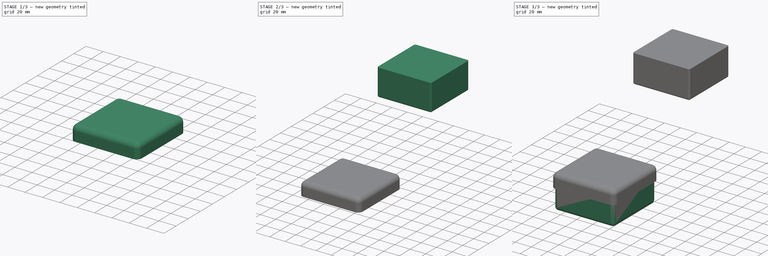
[diagram: build sequence overview — one tinted view per stage of 3, left to right]
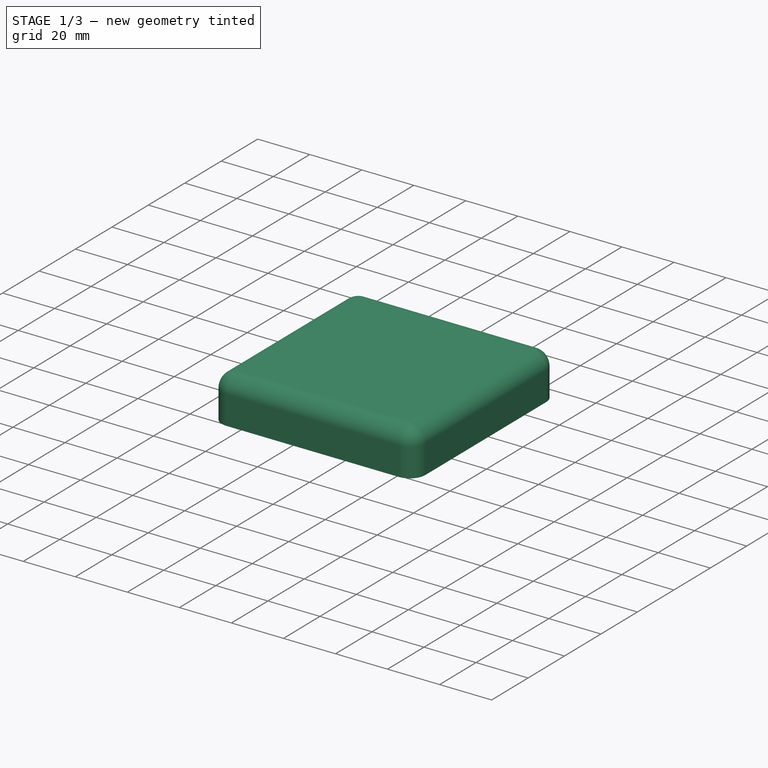
[diagram: stage 1 of 3 — iso view after this stage's code; geometry added in this stage tinted green]
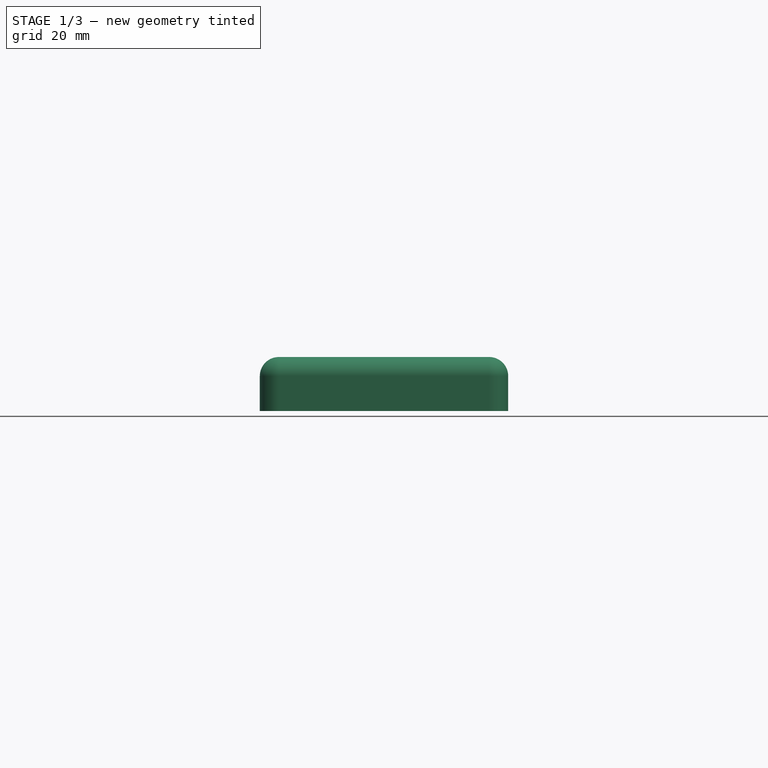
[diagram: stage 1 of 3 — front view after this stage's code; geometry added in this stage tinted green]
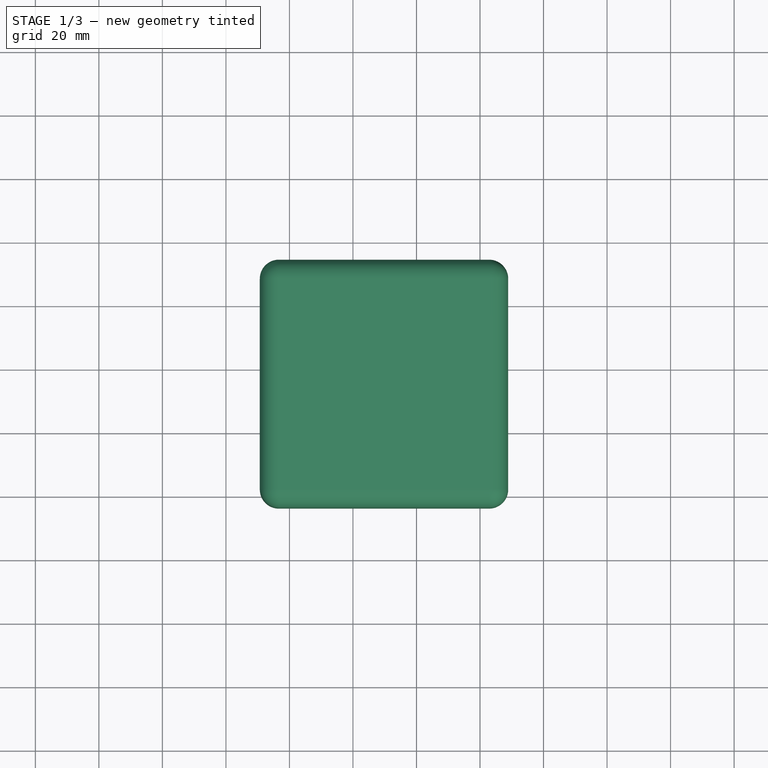
[diagram: stage 1 of 3 — top view after this stage's code; geometry added in this stage tinted green]
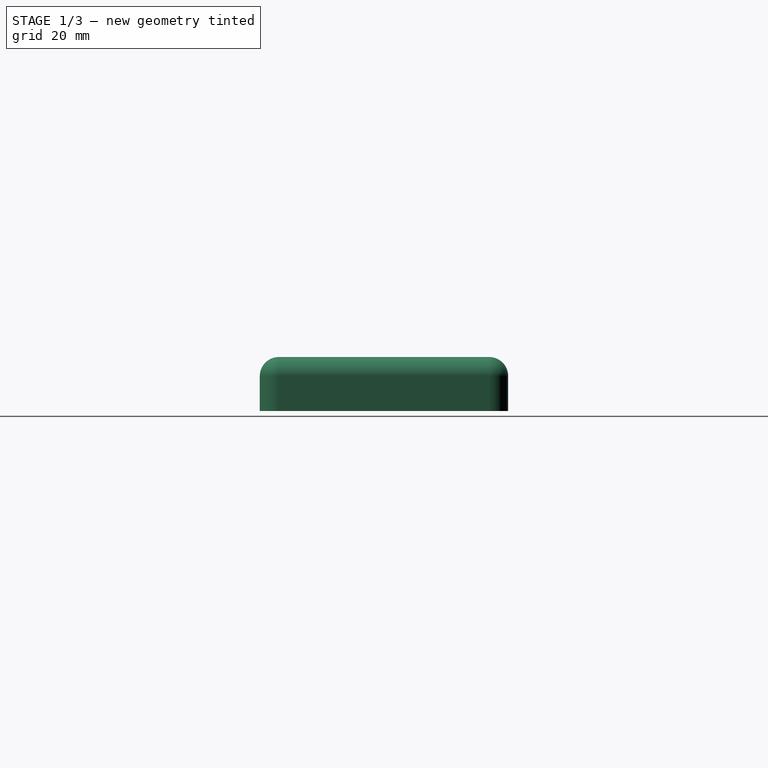
[diagram: stage 1 of 3 — right view after this stage's code; geometry added in this stage tinted green]
FCSTD DOCUMENT  (FreeCAD 0.16R6700 (Git))
Label: caja_parametrica_V1
License: All rights reserved
LicenseURL: http://es.wikipedia.org/wiki/Todos_los_derechos_reservados
objects: Sketcher::SketchObject×3, PartDesign::Pad×3, PartDesign::Fillet×3, App::FeaturePython×3, Part::Thickness×2, Spreadsheet::Sheet×1, Drawing::FeatureViewPython×1, Drawing::FeaturePage×1
note: 14 computed .brp shape members not serialized (recipe doc carries the construction recipe); baked Part::Feature solids carry a one-line shape summary decoded from their .brp

FEATURE [Drawing::FeatureViewPython] ViewSpreadsheet  # drawing view (typed FeaturePython)
  Direction = (0,0,0)
  FillStyle = 0
  FontSize = 12
  LineStyle = 0
  LineWidth = 0.35
  Rotation = 0
  Scale = 20
  Source = -> Spreadsheet
  ViewResult = <g id="ViewSpreadsheet" transform="rotate(0.0,200.0,100.0) translate(200.0,100.0) scale(20.0,-20.0)"></g>
  Visible = true
  X = 200
  Y = 100
FEATURE [Drawing::FeaturePage] Page
  EditableTexts = AUTHOR NAME | CREATION DATE | SUPERVISOR NAME | CHECK DATE | SCALE | WEIGHT | NUMBER | SHEET | TITLE | SUBTITLE
  Group = -> [ViewSpreadsheet]
FEATURE [Sketcher::SketchObject] Sketch002
  expr: Constraints[9] = Spreadsheet.ancho + 4.2
  expr: Constraints[8] = Spreadsheet.fondo + 4.2
  sketch-geometry (4):
    g0: LineSegment StartX=12.6736 StartY=0 StartZ=0 EndX=86.8736 EndY=0 EndZ=0
    g1: LineSegment StartX=86.8736 StartY=0 StartZ=0 EndX=86.8736 EndY=-74.2 EndZ=0
    g2: LineSegment StartX=86.8736 StartY=-74.2 StartZ=0 EndX=12.6736 EndY=-74.2 EndZ=0
    g3: LineSegment StartX=12.6736 StartY=-74.2 StartZ=0 EndX=12.6736 EndY=0 EndZ=0
  constraints (11):
    c: Coincident(g0,g1)
    c: Coincident(g1,g2)
    c: Coincident(g2,g3)
    c: Coincident(g3,g0)
    c: Horizontal(g0)
    c: Horizontal(g2)
    c: Vertical(g1)
    c: Vertical(g3)
    c: DistanceY(g1,g1) = 74.2
    c: DistanceX(g2,g2) = 74.2
    c: PointOnObject(g0,g-1)
FEATURE [PartDesign::Pad] Pad002
  Length = 15
  Length2 = 100
  Sketch = -> Sketch002
  Type = 0
  expr: Length = Spreadsheet.alto_tapa
FEATURE [PartDesign::Fillet] Fillet002
  Base = -> Pad002 [Edge8,Edge5,Edge2,Edge9,Edge6,Edge11,Edge1,Edge3]
  Radius = 4
  expr: Radius = Spreadsheet.radio + 2
FEATURE [Part::Thickness] Thickness001  label="Tapa"
  Faces = -> Fillet002 [Face2]
  Intersection = false
  Join = 0
  Mode = 0
  Placement = pos=(39.5456,-67.4232,-85.447) rot=(0,1,0;3.14159rad)
  SelfIntersection = false
  Value = 2
FEATURE [App::FeaturePython] planeConstraint01  # a2plus constraint (typed FeaturePython)
  Object1 = Thickness001
  Object2 = Thickness
  SubElement1 = Face12
  SubElement2 = Face18
  Type = plane
  directionConstraint = 1
  offset = -3.5
FEATURE [App::FeaturePython] planeConstraint02  # a2plus constraint (typed FeaturePython)
  Object1 = Thickness001
  Object2 = Thickness
  SubElement1 = Face5
  SubElement2 = Face23
  Type = plane
  directionConstraint = 0
  offset = 0.1
FEATURE [App::FeaturePython] planeConstraint03  # a2plus constraint (typed FeaturePython)
  Object1 = Thickness
  Object2 = Thickness001
  SubElement1 = Face26
  SubElement2 = Face9
  Type = plane
  directionConstraint = 0
  offset = -0.1
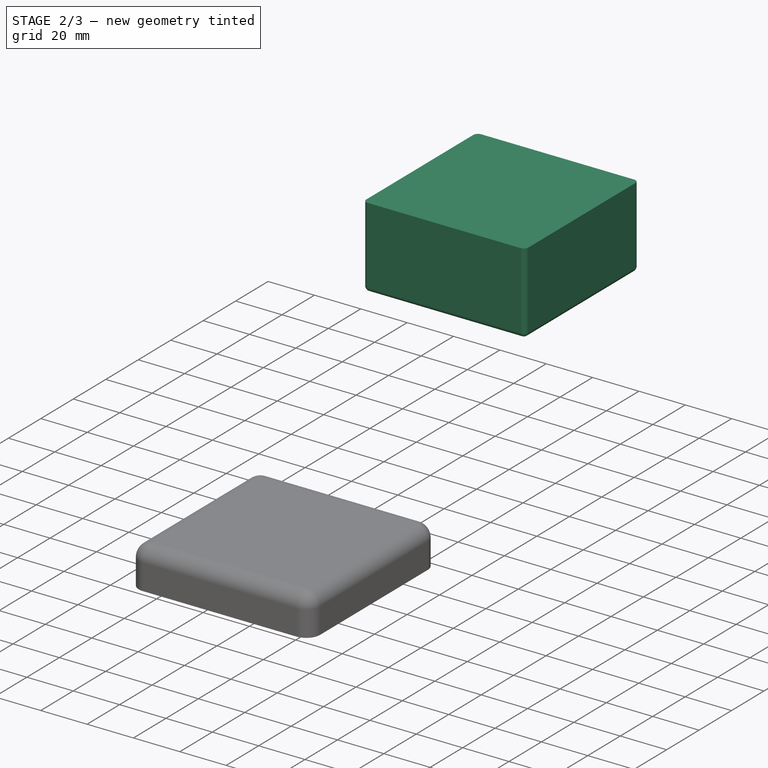
[diagram: stage 2 of 3 — iso view after this stage's code; geometry added in this stage tinted green]
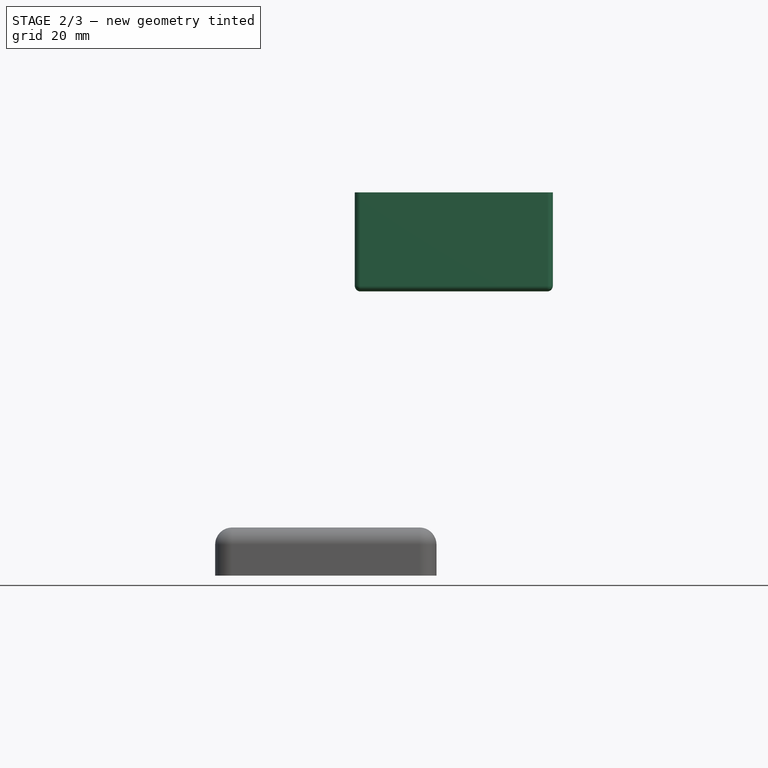
[diagram: stage 2 of 3 — front view after this stage's code; geometry added in this stage tinted green]
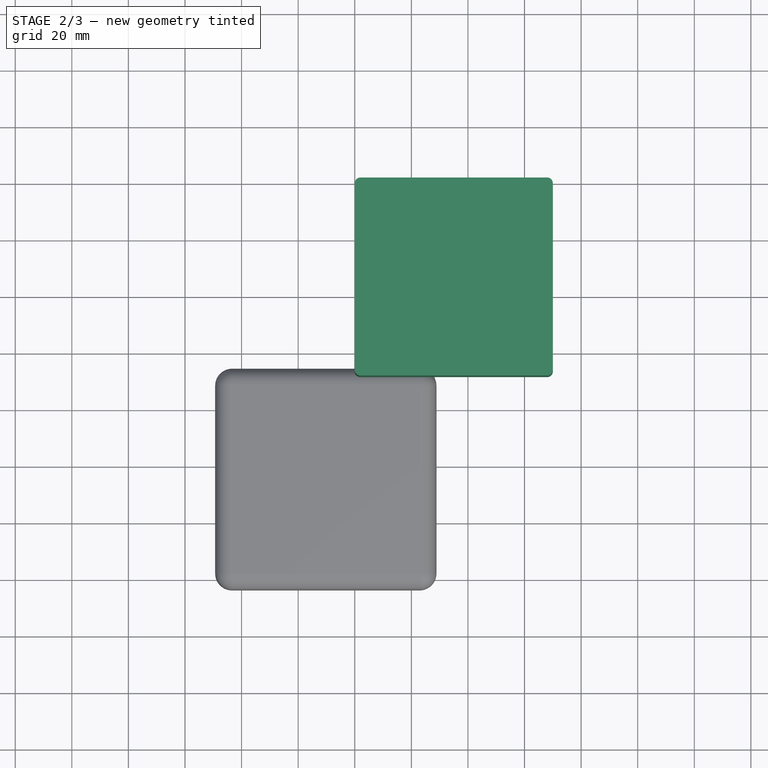
[diagram: stage 2 of 3 — top view after this stage's code; geometry added in this stage tinted green]
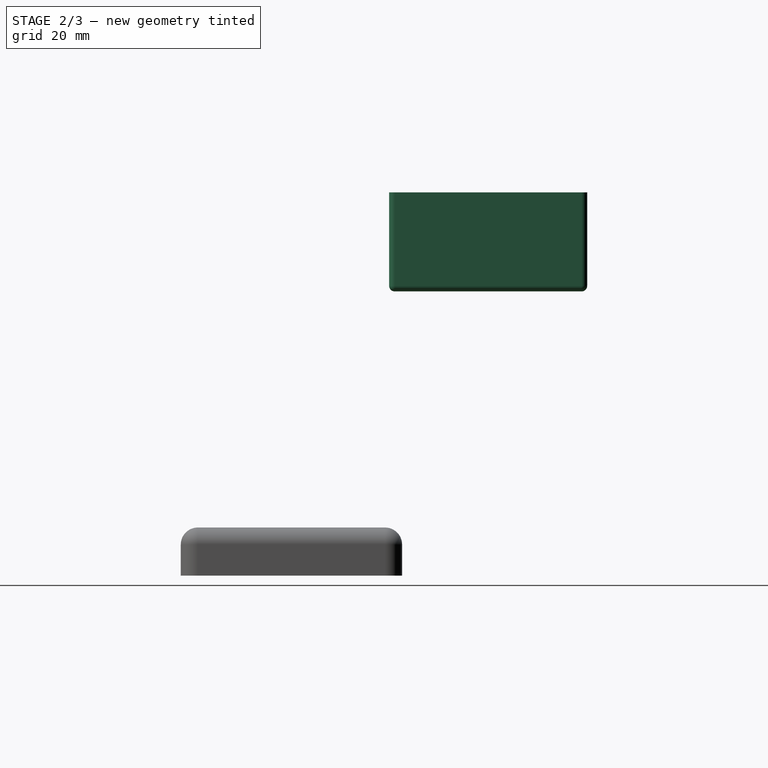
[diagram: stage 2 of 3 — right view after this stage's code; geometry added in this stage tinted green]
FEATURE [Sketcher::SketchObject] Sketch001
  expr: Constraints[10] = Spreadsheet.fondo
  expr: Constraints[9] = Spreadsheet.ancho
  sketch-geometry (4):
    g0: LineSegment StartX=0 StartY=0 StartZ=0 EndX=70 EndY=0 EndZ=0
    g1: LineSegment StartX=70 StartY=0 StartZ=0 EndX=70 EndY=-70 EndZ=0
    g2: LineSegment StartX=70 StartY=-70 StartZ=0 EndX=0 EndY=-70 EndZ=0
    g3: LineSegment StartX=0 StartY=-70 StartZ=0 EndX=0 EndY=0 EndZ=0
  constraints (11):
    c: Coincident(g0,g1)
    c: Coincident(g1,g2)
    c: Coincident(g2,g3)
    c: Coincident(g3,g0)
    c: Horizontal(g0)
    c: Horizontal(g2)
    c: Vertical(g1)
    c: Vertical(g3)
    c: Coincident(g0,g-1)
    c: DistanceX(g0,g0) = 70
    c: DistanceY(g3,g3) = 70
FEATURE [PartDesign::Pad] Pad001
  Length = 35
  Length2 = 100
  Sketch = -> Sketch001
  Type = 0
  expr: Length = Spreadsheet.alto
FEATURE [PartDesign::Fillet] Fillet001
  Base = -> Pad001 [Edge2,Edge3,Edge1,Edge11,Edge8,Edge9,Edge5,Edge6]
  Radius = 2
  expr: Radius = Spreadsheet.radio
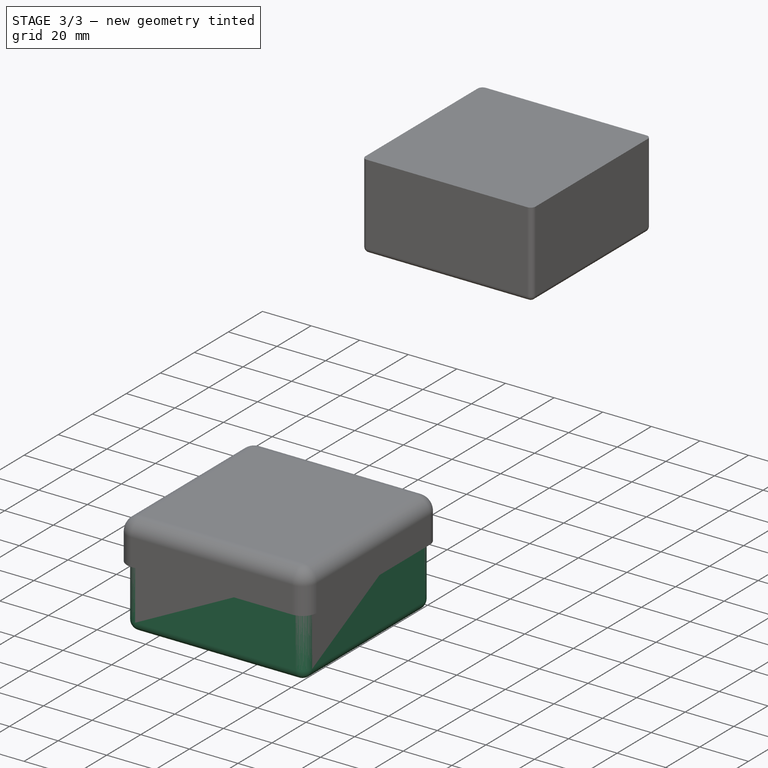
[diagram: stage 3 of 3 — iso view after this stage's code; geometry added in this stage tinted green]
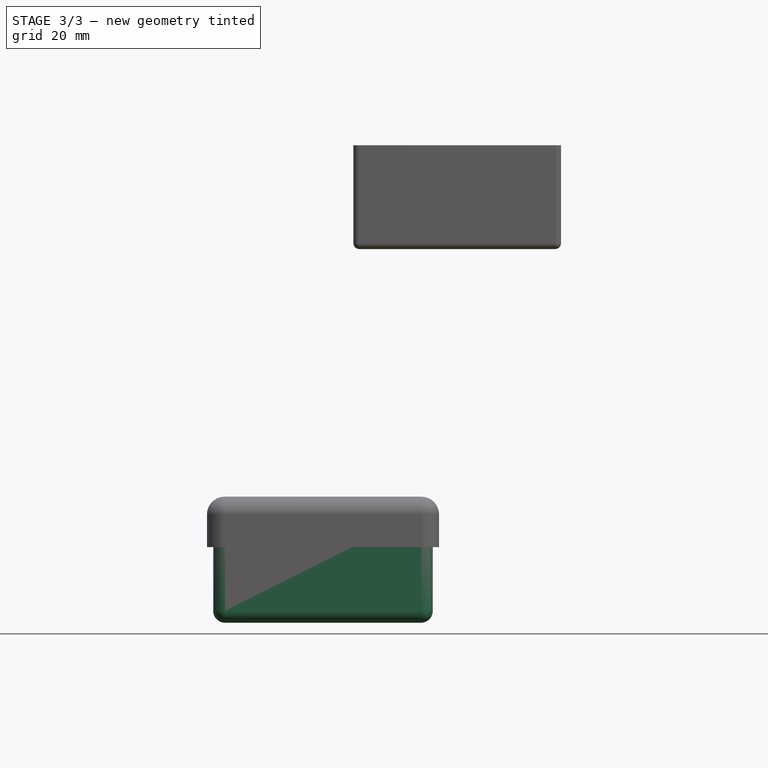
[diagram: stage 3 of 3 — front view after this stage's code; geometry added in this stage tinted green]
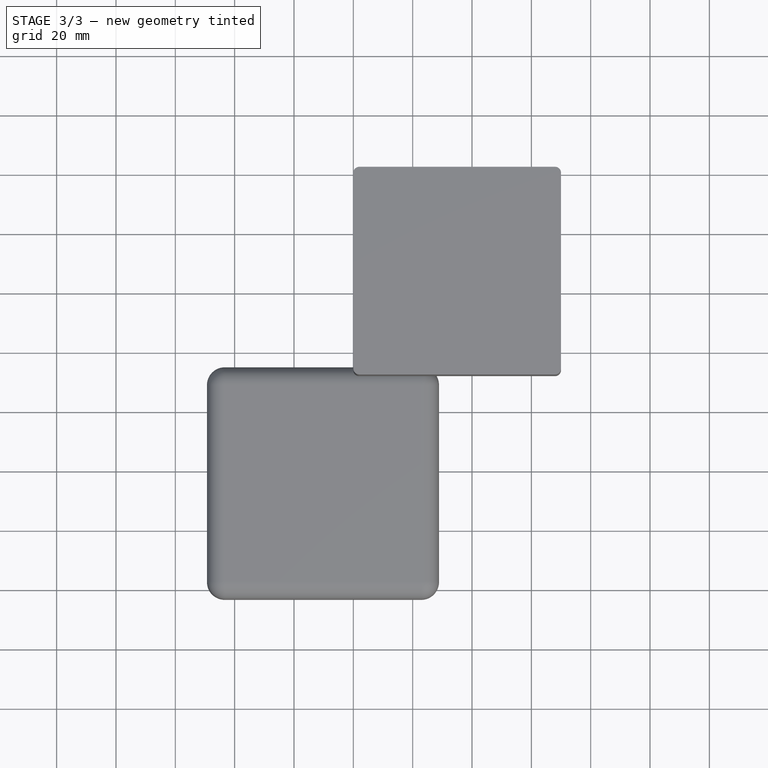
[diagram: stage 3 of 3 — top view after this stage's code; geometry added in this stage tinted green]
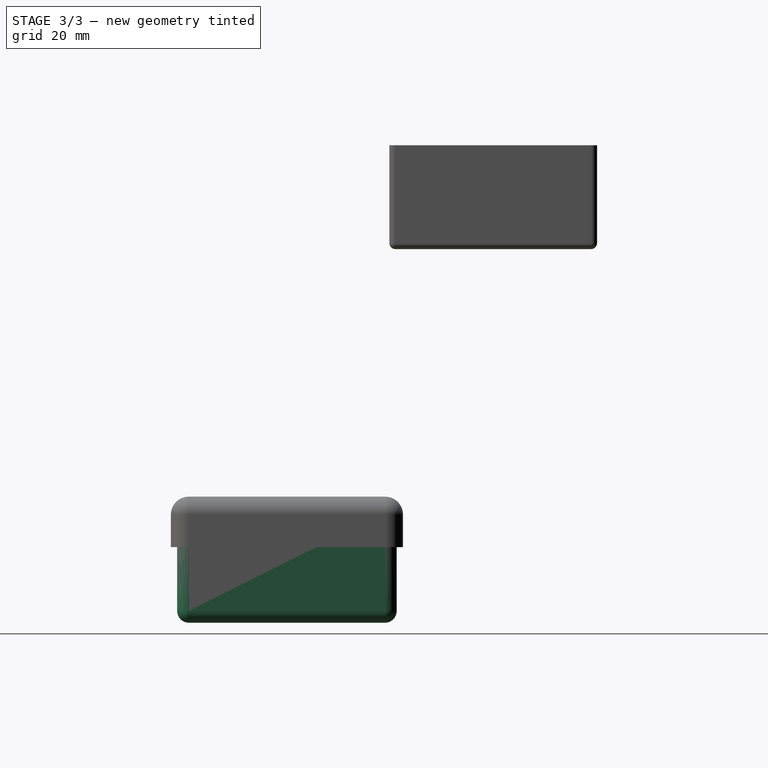
[diagram: stage 3 of 3 — right view after this stage's code; geometry added in this stage tinted green]
FEATURE [Spreadsheet::Sheet] Spreadsheet  label="Tabla_Caja"
  cells = B4=PARÁMETROS CAJA; B5=Ancho Caja; C5(ancho)=70; B6=Fondo Caja; C6(fondo)=70; B7=Altura Caja; C7(alto)=35; B8=Radio Curva; C8(radio)=2; B10=PARÁMETROS TAPA; B11=Altura Tapa; C11(alto_tapa)=15
FEATURE [Sketcher::SketchObject] Sketch
  expr: Constraints[10] = Tabla_Caja.fondo
  expr: Constraints[9] = Tabla_Caja.ancho
  sketch-geometry (4):
    g0: LineSegment StartX=0 StartY=0 StartZ=0 EndX=70 EndY=0 EndZ=0
    g1: LineSegment StartX=70 StartY=0 StartZ=0 EndX=70 EndY=-70 EndZ=0
    g2: LineSegment StartX=70 StartY=-70 StartZ=0 EndX=0 EndY=-70 EndZ=0
    g3: LineSegment StartX=0 StartY=-70 StartZ=0 EndX=0 EndY=0 EndZ=0
  constraints (11):
    c: Coincident(g0,g1)
    c: Coincident(g1,g2)
    c: Coincident(g2,g3)
    c: Coincident(g3,g0)
    c: Horizontal(g0)
    c: Horizontal(g2)
    c: Vertical(g1)
    c: Vertical(g3)
    c: Coincident(g0,g-1)
    c: DistanceX(g0,g0) = 70
    c: DistanceY(g3,g3) = 70
FEATURE [PartDesign::Pad] Pad
  Length = 35
  Length2 = 100
  Sketch = -> Sketch
  Type = 0
  expr: Length = Tabla_Caja.alto
FEATURE [PartDesign::Fillet] Fillet
  Base = -> Pad [Edge2,Edge3,Edge1,Edge11,Edge8,Edge9,Edge5,Edge6]
  Radius = 2
  expr: Radius = Tabla_Caja.radio
FEATURE [Part::Thickness] Thickness  label="Caja"
  Faces = -> Fillet [Face2]
  Intersection = false
  Join = 0
  Mode = 0
  Placement = pos=(-45.2281,-69.5232,-123.947) rot=(0,0,1;0rad)
  SelfIntersection = false
  Value = 2
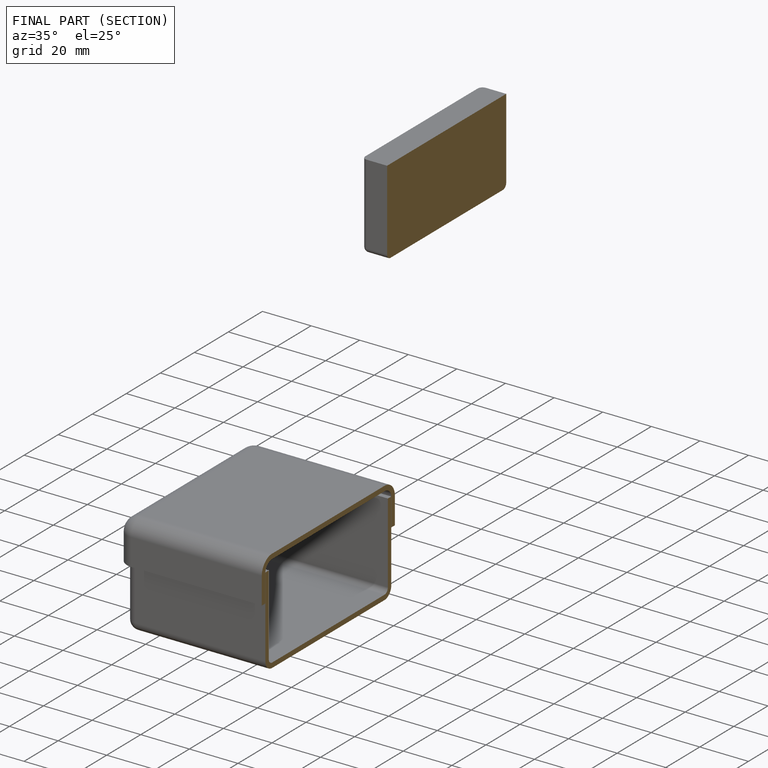
[diagram: finished part — half-section view (interior)]
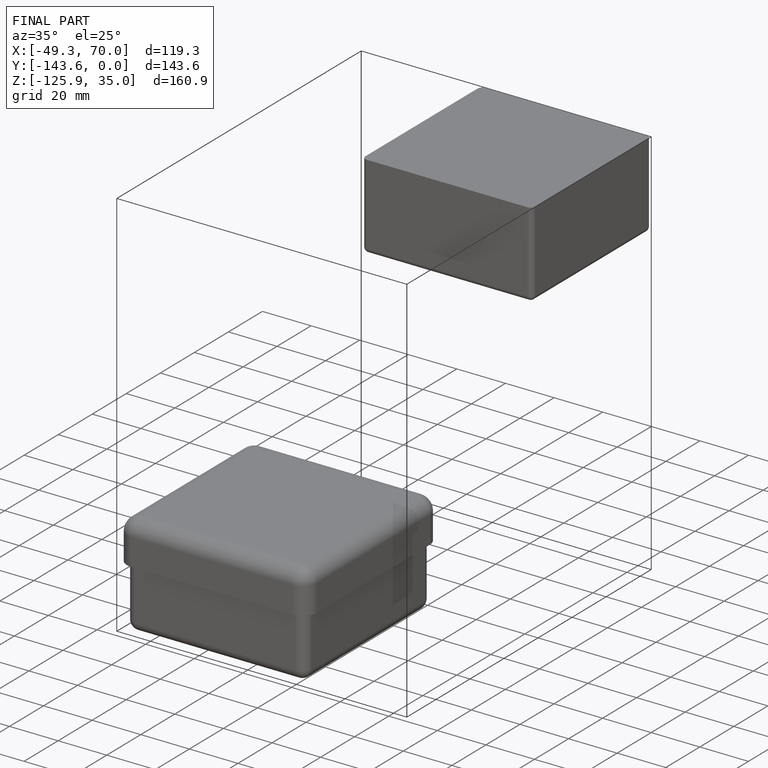
[diagram: finished part — iso view with bounding-box wireframe]
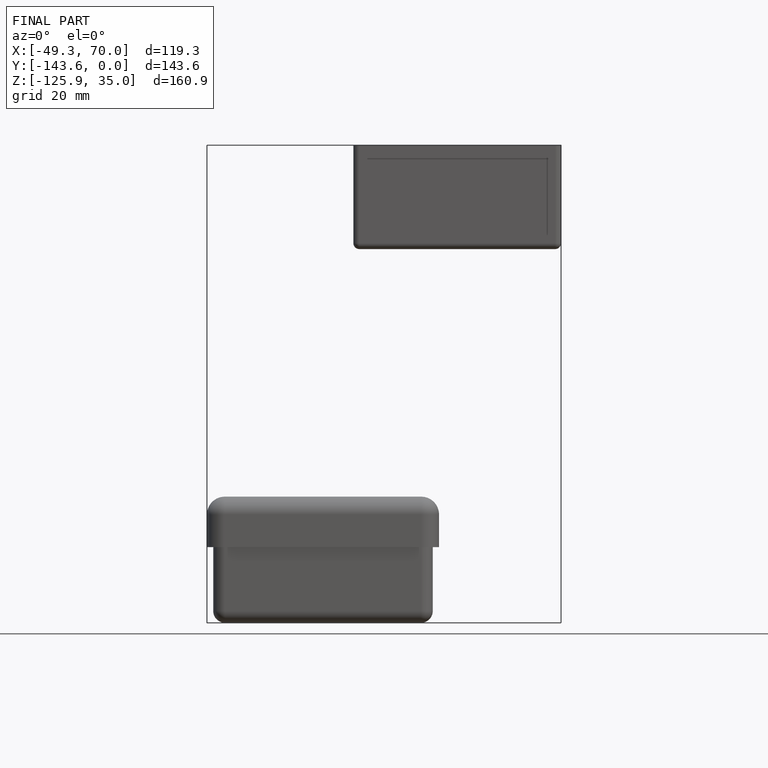
[diagram: finished part — front view with bounding-box wireframe]
